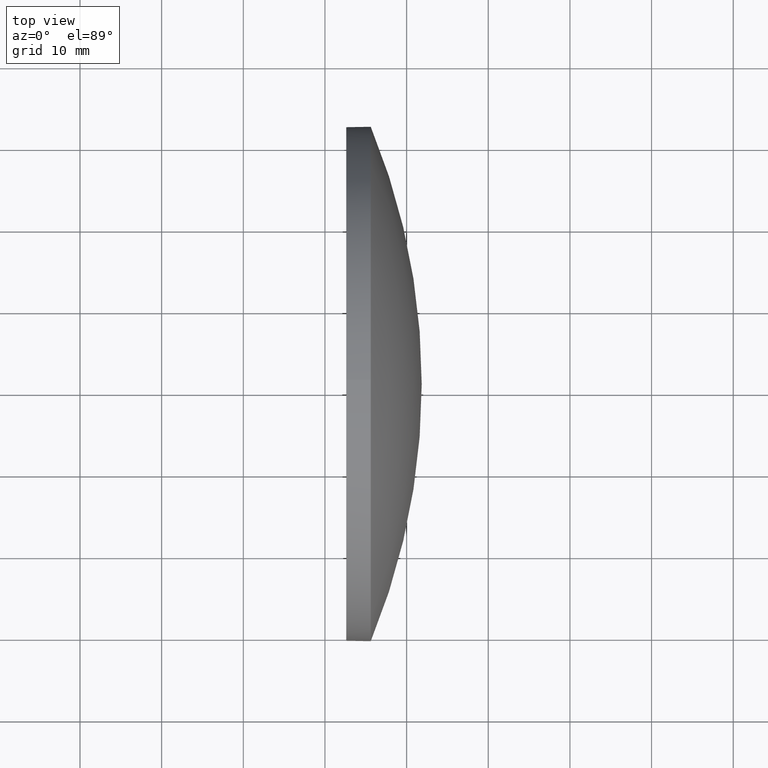
[diagram: clean part render]
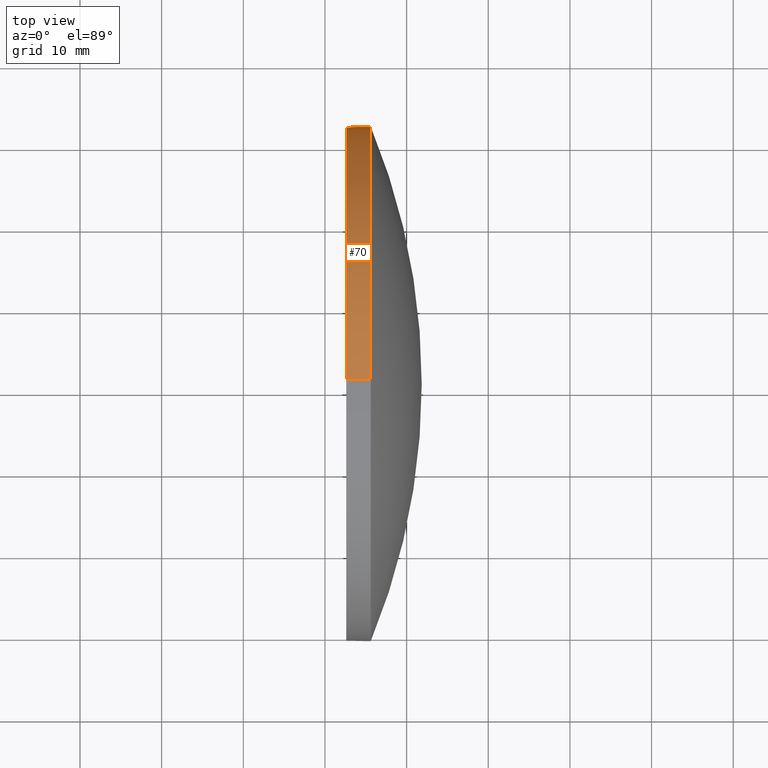
[diagram: same view with one face highlighted and labeled with its STEP entity id]
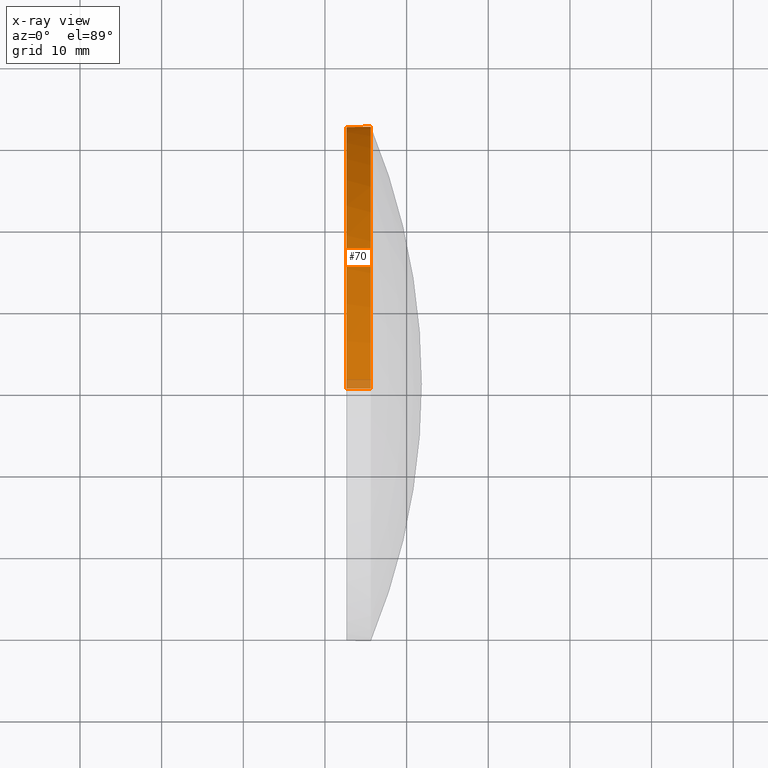
[diagram: x-ray of the same camera — body ghosted, the highlighted face saturated]
A machine part, top view. The second image highlights one B-rep face of the part: STEP entity #70.
The next image is the same camera in x-ray: the body ghosted, the highlighted face saturated — about 3% of this face is hidden behind the body in this view.
In plain terms, the highlighted cylindrical surface (partial cylindrical patch) has radius 31.5 mm, axis along (-1, -0, -0).
Its self-contained STEP definition (entity closure, byte-faithful):
#1 = ORIENTED_EDGE ( 'NONE', *, *, #85, .T. ) ;
#3 = VECTOR ( 'NONE', #45, 1000.000000000000000 ) ;
#4 = VECTOR ( 'NONE', #61, 1000.000000000000000 ) ;
#6 = CARTESIAN_POINT ( 'NONE',  ( 444.6402855359796100, 80.82132108647019200, 0.0000000000000000000 ) ) ;
#12 = LINE ( 'NONE', #18, #3 ) ;
#16 = VERTEX_POINT ( 'NONE', #31 ) ;
#18 = CARTESIAN_POINT ( 'NONE',  ( 444.6402855359796100, 80.82132108647019200, 31.50000000000000000 ) ) ;
#20 = CARTESIAN_POINT ( 'NONE',  ( 452.6110172033103300, 80.82132108647019200, 0.0000000000000000000 ) ) ;
#30 = ORIENTED_EDGE ( 'NONE', *, *, #56, .F. ) ;
#31 = CARTESIAN_POINT ( 'NONE',  ( 452.6110172033103300, 80.82132108647019200, 31.50000000000000000 ) ) ;
#33 = CARTESIAN_POINT ( 'NONE',  ( 455.6110172033103300, 112.3213210864701900, 0.0000000000000000000 ) ) ;
#35 = DIRECTION ( 'NONE',  ( -1.000000000000000000, -0.0000000000000000000, -0.0000000000000000000 ) ) ;
#36 = CARTESIAN_POINT ( 'NONE',  ( 455.6110172033103300, 80.82132108647019200, 0.0000000000000000000 ) ) ;
#37 = CARTESIAN_POINT ( 'NONE',  ( 452.6110172033103300, 80.82132108647019200, -31.50000000000000000 ) ) ;
#41 = CIRCLE ( 'NONE', #90, 31.50000000000000000 ) ;
#45 = DIRECTION ( 'NONE',  ( -1.000000000000000000, -0.0000000000000000000, -0.0000000000000000000 ) ) ;
#48 = CARTESIAN_POINT ( 'NONE',  ( 455.6110172033103300, 80.82132108647019200, 31.50000000000000000 ) ) ;
#53 = EDGE_LOOP ( 'NONE', ( #107, #1, #30, #102, #88 ) ) ;
#56 = EDGE_CURVE ( 'NONE', #16, #139, #41, .T. ) ;
#61 = DIRECTION ( 'NONE',  ( -1.000000000000000000, -0.0000000000000000000, -0.0000000000000000000 ) ) ;
#63 = EDGE_CURVE ( 'NONE', #87, #16, #12, .T. ) ;
#69 = AXIS2_PLACEMENT_3D ( 'NONE', #36, #126, #78 ) ;
#70 = ADVANCED_FACE ( 'NONE', ( #82 ), #89, .T. ) ;
#78 = DIRECTION ( 'NONE',  ( 0.0000000000000000000, 0.0000000000000000000, 1.000000000000000000 ) ) ;
#79 = DIRECTION ( 'NONE',  ( -1.000000000000000000, -0.0000000000000000000, -0.0000000000000000000 ) ) ;
#82 = FACE_OUTER_BOUND ( 'NONE', #53, .T. ) ;
#85 = EDGE_CURVE ( 'NONE', #137, #139, #171, .T. ) ;
#87 = VERTEX_POINT ( 'NONE', #48 ) ;
#88 = ORIENTED_EDGE ( 'NONE', *, *, #96, .T. ) ;
#89 = CYLINDRICAL_SURFACE ( 'NONE', #110, 31.50000000000000000 ) ;
#90 = AXIS2_PLACEMENT_3D ( 'NONE', #20, #35, #166 ) ;
#91 = VERTEX_POINT ( 'NONE', #33 ) ;
#96 = EDGE_CURVE ( 'NONE', #87, #91, #168, .T. ) ;
#102 = ORIENTED_EDGE ( 'NONE', *, *, #63, .F. ) ;
#107 = ORIENTED_EDGE ( 'NONE', *, *, #161, .T. ) ;
#110 = AXIS2_PLACEMENT_3D ( 'NONE', #6, #143, #164 ) ;
#125 = CARTESIAN_POINT ( 'NONE',  ( 455.6110172033103300, 80.82132108647019200, 0.0000000000000000000 ) ) ;
#126 = DIRECTION ( 'NONE',  ( -1.000000000000000000, -0.0000000000000000000, -0.0000000000000000000 ) ) ;
#127 = DIRECTION ( 'NONE',  ( 0.0000000000000000000, 0.0000000000000000000, 1.000000000000000000 ) ) ;
#131 = CIRCLE ( 'NONE', #69, 31.50000000000000000 ) ;
#133 = CARTESIAN_POINT ( 'NONE',  ( 444.6402855359796100, 80.82132108647019200, -31.50000000000000000 ) ) ;
#137 = VERTEX_POINT ( 'NONE', #167 ) ;
#139 = VERTEX_POINT ( 'NONE', #37 ) ;
#143 = DIRECTION ( 'NONE',  ( -1.000000000000000000, -0.0000000000000000000, -0.0000000000000000000 ) ) ;
#161 = EDGE_CURVE ( 'NONE', #91, #137, #131, .T. ) ;
#163 = AXIS2_PLACEMENT_3D ( 'NONE', #125, #79, #127 ) ;
#164 = DIRECTION ( 'NONE',  ( 0.0000000000000000000, 0.0000000000000000000, 1.000000000000000000 ) ) ;
#166 = DIRECTION ( 'NONE',  ( 0.0000000000000000000, 0.0000000000000000000, 1.000000000000000000 ) ) ;
#167 = CARTESIAN_POINT ( 'NONE',  ( 455.6110172033103300, 80.82132108647019200, -31.50000000000000000 ) ) ;
#168 = CIRCLE ( 'NONE', #163, 31.50000000000000000 ) ;
#171 = LINE ( 'NONE', #133, #4 ) ;